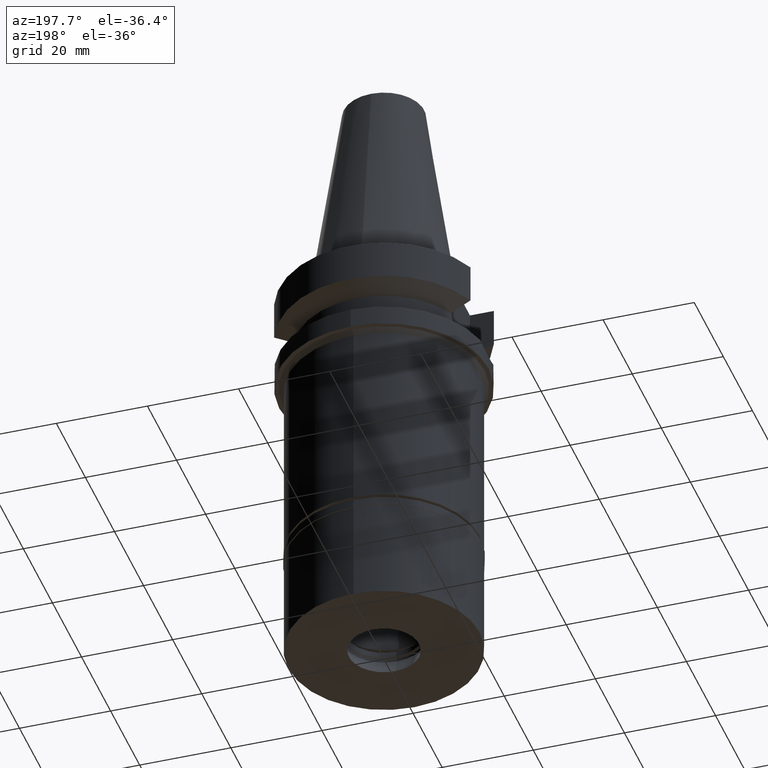
[diagram: clean part render]
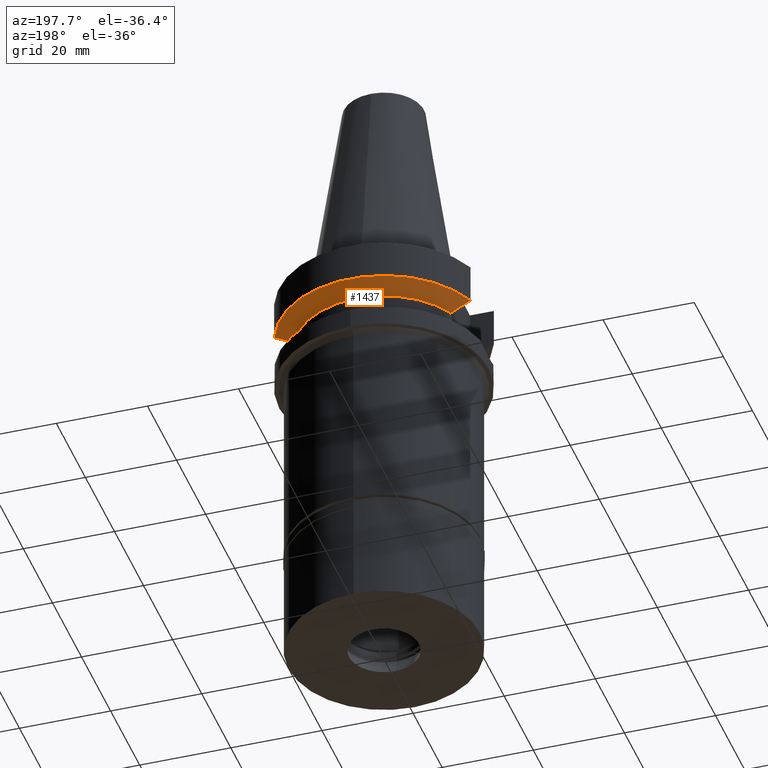
[diagram: same view with one face highlighted and labeled with its STEP entity id]
A machine part, auxiliary view. The second image highlights one B-rep face of the part: STEP entity #1437.
In plain terms, the highlighted conical surface has half-angle 60 deg.
Its self-contained STEP definition (entity closure, byte-faithful):
#33 = CARTESIAN_POINT ( 'NONE',  ( -17.23531135310999929, 7.996501749182001184, -11.87660739352000050 ) ) ;
#40 = CARTESIAN_POINT ( 'NONE',  ( 21.54524325238000060, 8.049999577379001181, -9.567211146543000311 ) ) ;
#41 = EDGE_LOOP ( 'NONE', ( #937, #443, #2198, #995, #2430, #2771 ) ) ;
#177 = DIRECTION ( 'NONE',  ( -0.9071218755693948310, 0.4208680349746975469, 0.0000000000000000000 ) ) ;
#254 = DIRECTION ( 'NONE',  ( 0.0000000000000000000, 0.0000000000000000000, 1.000000000000000000 ) ) ;
#263 = CARTESIAN_POINT ( 'NONE',  ( 19.78174442298433533, 8.049991903556987793, -10.51718567366341262 ) ) ;
#297 = EDGE_CURVE ( 'NONE', #1631, #963, #1355, .T. ) ;
#443 = ORIENTED_EDGE ( 'NONE', *, *, #1249, .T. ) ;
#483 = AXIS2_PLACEMENT_3D ( 'NONE', #2189, #254, #2876 ) ;
#530 = AXIS2_PLACEMENT_3D ( 'NONE', #880, #1317, #177 ) ;
#541 = EDGE_CURVE ( 'NONE', #1325, #2277, #1229, .T. ) ;
#594 = CARTESIAN_POINT ( 'NONE',  ( -17.23531135310999929, 7.996501749182001184, -11.87660739352000050 ) ) ;
#603 = B_SPLINE_CURVE_WITH_KNOTS ( 'NONE', 3,
 ( #40, #1473, #263, #1208 ),
 .UNSPECIFIED., .F., .F.,
 ( 4, 4 ),
 ( 0.0000000000000000000, 1.000000000000000000 ),
 .UNSPECIFIED. ) ;
#627 = CARTESIAN_POINT ( 'NONE',  ( 18.30334767960350817, 8.049999956193227391, -11.30291651801537789 ) ) ;
#683 = CARTESIAN_POINT ( 'NONE',  ( -21.54524231189000005, 8.050002094537999753, -9.567194606710000215 ) ) ;
#834 = CONICAL_SURFACE ( 'NONE', #2336, 21.00000000000000000, 1.047197551196400456 ) ;
#872 = CARTESIAN_POINT ( 'NONE',  ( 17.23531622902000038, 7.996491146276001771, -11.87660607782000000 ) ) ;
#880 = CARTESIAN_POINT ( 'NONE',  ( 0.0000000000000000000, 0.0000000000000000000, -11.87660944646999894 ) ) ;
#913 = CARTESIAN_POINT ( 'NONE',  ( -20.64102060459518029, 8.050004185766381326, -10.05624058887161532 ) ) ;
#919 = CARTESIAN_POINT ( 'NONE',  ( 18.96738966530000070, 8.049994318182998043, -10.95000099923000114 ) ) ;
#937 = ORIENTED_EDGE ( 'NONE', *, *, #1224, .F. ) ;
#963 = VERTEX_POINT ( 'NONE', #594 ) ;
#995 = ORIENTED_EDGE ( 'NONE', *, *, #1962, .F. ) ;
#1118 = CARTESIAN_POINT ( 'NONE',  ( 18.96738966530000070, 8.049994318182998043, -10.95000099923000114 ) ) ;
#1208 = CARTESIAN_POINT ( 'NONE',  ( 18.96738966530000070, 8.049994318182998043, -10.95000099923000114 ) ) ;
#1224 = EDGE_CURVE ( 'NONE', #1635, #1709, #2868, .T. ) ;
#1229 = B_SPLINE_CURVE_WITH_KNOTS ( 'NONE', 3,
 ( #872, #1629, #627, #1118 ),
 .UNSPECIFIED., .F., .F.,
 ( 4, 4 ),
 ( 0.0000000000000000000, 1.000000000000000000 ),
 .UNSPECIFIED. ) ;
#1249 = EDGE_CURVE ( 'NONE', #1635, #2277, #603, .T. ) ;
#1317 = DIRECTION ( 'NONE',  ( 0.0000000000000000000, 0.0000000000000000000, -1.000000000000000000 ) ) ;
#1325 = VERTEX_POINT ( 'NONE', #2540 ) ;
#1355 = B_SPLINE_CURVE_WITH_KNOTS ( 'NONE', 3,
 ( #1907, #2599, #2852, #33 ),
 .UNSPECIFIED., .F., .F.,
 ( 4, 4 ),
 ( 0.0000000000000000000, 1.000000000000000000 ),
 .UNSPECIFIED. ) ;
#1382 = DIRECTION ( 'NONE',  ( 0.0000000000000000000, 1.000000000000000000, 0.0000000000000000000 ) ) ;
#1434 = EDGE_CURVE ( 'NONE', #1631, #1709, #2950, .T. ) ;
#1437 = ADVANCED_FACE ( 'NONE', ( #2842 ), #834, .T. ) ;
#1473 = CARTESIAN_POINT ( 'NONE',  ( 20.64098922513857204, 8.049999155450739963, -10.05625859774404063 ) ) ;
#1598 = CIRCLE ( 'NONE', #530, 19.00000000000000000 ) ;
#1629 = CARTESIAN_POINT ( 'NONE',  ( 17.72598986751017236, 8.027133616107310132, -11.61218197945228070 ) ) ;
#1631 = VERTEX_POINT ( 'NONE', #2788 ) ;
#1635 = VERTEX_POINT ( 'NONE', #2561 ) ;
#1709 = VERTEX_POINT ( 'NONE', #1971 ) ;
#1892 = DIRECTION ( 'NONE',  ( 0.0000000000000000000, 0.0000000000000000000, 1.000000000000000000 ) ) ;
#1907 = CARTESIAN_POINT ( 'NONE',  ( -18.96736186674000280, 8.050001277723000115, -10.94999977542999936 ) ) ;
#1923 = CARTESIAN_POINT ( 'NONE',  ( -19.78176599729541962, 8.050001299788625886, -10.51717224217188473 ) ) ;
#1935 = CARTESIAN_POINT ( 'NONE',  ( 0.0000000000000000000, 0.0000000000000000000, -10.72190890808999875 ) ) ;
#1962 = EDGE_CURVE ( 'NONE', #963, #1325, #1598, .T. ) ;
#1971 = CARTESIAN_POINT ( 'NONE',  ( -21.54524231189000005, 8.050002094537999753, -9.567194606710000215 ) ) ;
#2189 = CARTESIAN_POINT ( 'NONE',  ( 0.0000000000000000000, 0.0000000000000000000, -9.567208369710998639 ) ) ;
#2198 = ORIENTED_EDGE ( 'NONE', *, *, #541, .F. ) ;
#2277 = VERTEX_POINT ( 'NONE', #919 ) ;
#2336 = AXIS2_PLACEMENT_3D ( 'NONE', #1935, #1892, #1382 ) ;
#2363 = CARTESIAN_POINT ( 'NONE',  ( -18.96736186674000280, 8.050001277723000115, -10.94999977542999936 ) ) ;
#2430 = ORIENTED_EDGE ( 'NONE', *, *, #297, .F. ) ;
#2540 = CARTESIAN_POINT ( 'NONE',  ( 17.23531622902000038, 7.996491146276001771, -11.87660607782000000 ) ) ;
#2561 = CARTESIAN_POINT ( 'NONE',  ( 21.54524325238000060, 8.049999577379001181, -9.567211146543000311 ) ) ;
#2599 = CARTESIAN_POINT ( 'NONE',  ( -18.30417677366077811, 8.050000009832531944, -11.30245974016199106 ) ) ;
#2771 = ORIENTED_EDGE ( 'NONE', *, *, #1434, .T. ) ;
#2788 = CARTESIAN_POINT ( 'NONE',  ( -18.96736186674000280, 8.050001277723000115, -10.94999977542999936 ) ) ;
#2842 = FACE_OUTER_BOUND ( 'NONE', #41, .T. ) ;
#2852 = CARTESIAN_POINT ( 'NONE',  ( -17.72682660245077813, 8.027186146720495685, -11.61172867191410418 ) ) ;
#2868 = CIRCLE ( 'NONE', #483, 23.00000000000000000 ) ;
#2876 = DIRECTION ( 'NONE',  ( 0.0000000000000000000, 1.000000000000000000, 0.0000000000000000000 ) ) ;
#2950 = B_SPLINE_CURVE_WITH_KNOTS ( 'NONE', 3,
 ( #2363, #1923, #913, #683 ),
 .UNSPECIFIED., .F., .F.,
 ( 4, 4 ),
 ( 0.0000000000000000000, 1.000000000000000000 ),
 .UNSPECIFIED. ) ;